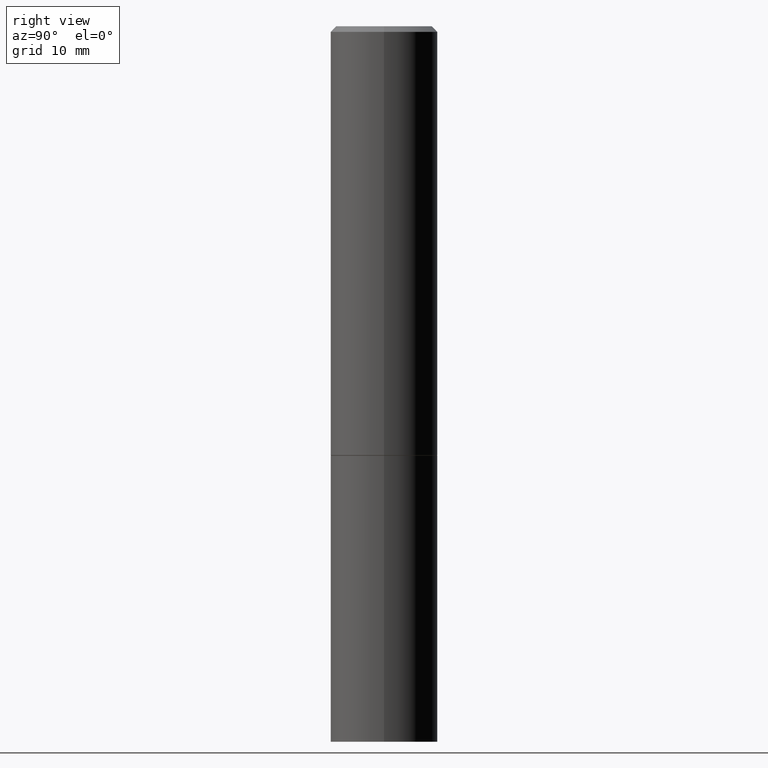
[diagram: clean part render]
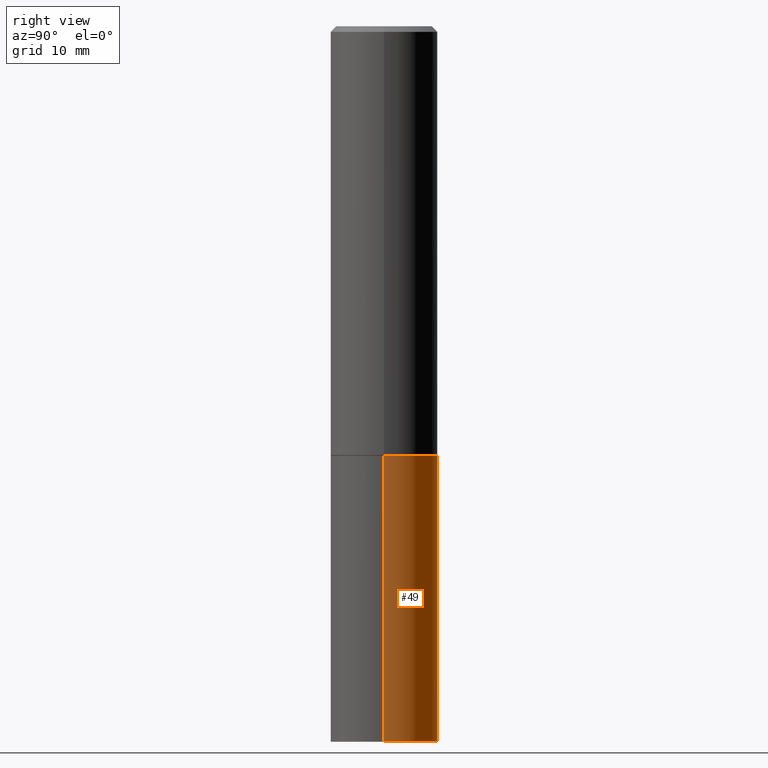
[diagram: same view with one face highlighted and labeled with its STEP entity id]
A machine part, right view. The second image highlights one B-rep face of the part: STEP entity #49.
In plain terms, the highlighted cylindrical surface (partial cylindrical patch) has radius 4.7625 mm, axis along (-0, 0, 1).
Its self-contained STEP definition (entity closure, byte-faithful):
#15 = CARTESIAN_POINT ( 'NONE',  ( 6.113672015462842613E-29, -8.728703347107864943E-15, -2.500000000000000000 ) ) ;
#20 = EDGE_CURVE ( 'NONE', #224, #53, #167, .T. ) ;
#30 = DIRECTION ( 'NONE',  ( -2.445468806185136877E-29, 3.491481338843145188E-15, 1.000000000000000000 ) ) ;
#40 = CARTESIAN_POINT ( 'NONE',  ( -0.1875000000000000278, -5.650695048136103317E-15, -1.500000000000000222 ) ) ;
#49 = ADVANCED_FACE ( 'NONE', ( #102 ), #203, .T. ) ;
#52 = AXIS2_PLACEMENT_3D ( 'NONE', #146, #361, #103 ) ;
#53 = VERTEX_POINT ( 'NONE', #40 ) ;
#55 = EDGE_CURVE ( 'NONE', #147, #53, #152, .T. ) ;
#57 = VERTEX_POINT ( 'NONE', #326 ) ;
#68 = CARTESIAN_POINT ( 'NONE',  ( 0.000000000000000000, 0.000000000000000000, 0.000000000000000000 ) ) ;
#70 = DIRECTION ( 'NONE',  ( 1.000000000000000000, -6.982962677686266711E-15, 0.000000000000000000 ) ) ;
#76 = ORIENTED_EDGE ( 'NONE', *, *, #322, .F. ) ;
#102 = FACE_OUTER_BOUND ( 'NONE', #237, .T. ) ;
#103 = DIRECTION ( 'NONE',  ( 1.000000000000000000, -6.982962677686266711E-15, 0.000000000000000000 ) ) ;
#129 = DIRECTION ( 'NONE',  ( 1.000000000000000000, -6.982962677686265922E-15, 4.876176775795935793E-29 ) ) ;
#132 = ORIENTED_EDGE ( 'NONE', *, *, #235, .T. ) ;
#146 = CARTESIAN_POINT ( 'NONE',  ( 3.668203209277704895E-29, -5.237222008264718177E-15, -1.500000000000000222 ) ) ;
#147 = VERTEX_POINT ( 'NONE', #228 ) ;
#152 = CIRCLE ( 'NONE', #52, 0.1875000000000000278 ) ;
#159 = VECTOR ( 'NONE', #269, 39.37007874015748143 ) ;
#164 = DIRECTION ( 'NONE',  ( -2.445468806185136597E-29, 3.491481338843145583E-15, 1.000000000000000000 ) ) ;
#167 = LINE ( 'NONE', #209, #159 ) ;
#203 = CYLINDRICAL_SURFACE ( 'NONE', #271, 0.1875000000000000278 ) ;
#206 = ORIENTED_EDGE ( 'NONE', *, *, #20, .T. ) ;
#208 = ORIENTED_EDGE ( 'NONE', *, *, #55, .F. ) ;
#209 = CARTESIAN_POINT ( 'NONE',  ( -0.1875000000000000278, 1.332267629550188046E-15, -9.223003294227947991E-30 ) ) ;
#224 = VERTEX_POINT ( 'NONE', #321 ) ;
#228 = CARTESIAN_POINT ( 'NONE',  ( 0.1875000000000000278, -6.546527510330893974E-15, -1.500000000000000222 ) ) ;
#235 = EDGE_CURVE ( 'NONE', #57, #224, #314, .T. ) ;
#237 = EDGE_LOOP ( 'NONE', ( #132, #206, #208, #76 ) ) ;
#262 = AXIS2_PLACEMENT_3D ( 'NONE', #15, #164, #70 ) ;
#263 = LINE ( 'NONE', #289, #340 ) ;
#269 = DIRECTION ( 'NONE',  ( -2.445468806185136877E-29, 3.491481338843145188E-15, 1.000000000000000000 ) ) ;
#271 = AXIS2_PLACEMENT_3D ( 'NONE', #68, #298, #129 ) ;
#289 = CARTESIAN_POINT ( 'NONE',  ( 0.1875000000000000278, -1.309305502066175008E-15, 9.142831454617381013E-30 ) ) ;
#298 = DIRECTION ( 'NONE',  ( -2.445468806185136597E-29, 3.491481338843145583E-15, 1.000000000000000000 ) ) ;
#314 = CIRCLE ( 'NONE', #262, 0.1875000000000000278 ) ;
#321 = CARTESIAN_POINT ( 'NONE',  ( -0.1875000000000000278, -5.650695048136103317E-15, -2.500000000000000000 ) ) ;
#322 = EDGE_CURVE ( 'NONE', #57, #147, #263, .T. ) ;
#326 = CARTESIAN_POINT ( 'NONE',  ( 0.1875000000000000278, -1.003800884917403995E-14, -2.500000000000000000 ) ) ;
#340 = VECTOR ( 'NONE', #30, 39.37007874015748143 ) ;
#361 = DIRECTION ( 'NONE',  ( -2.445468806185136597E-29, 3.491481338843145583E-15, 1.000000000000000000 ) ) ;